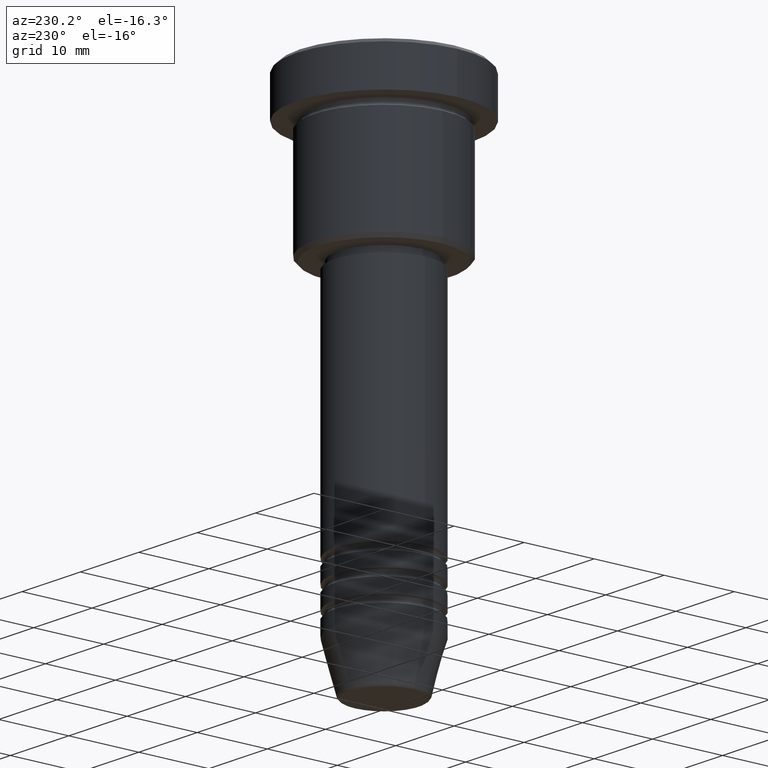
[diagram: clean part render]
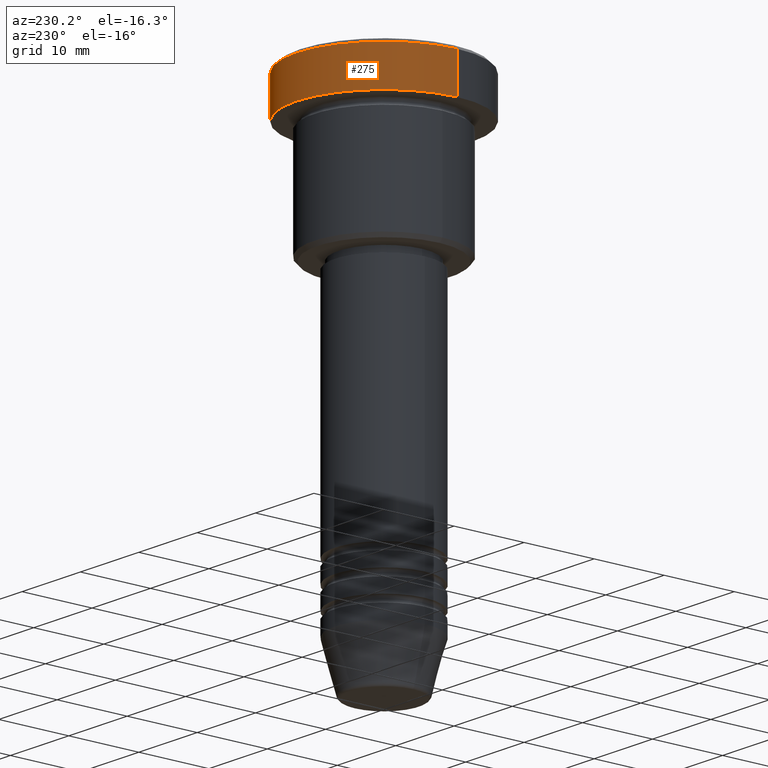
[diagram: same view with one face highlighted and labeled with its STEP entity id]
A machine part, auxiliary view. The second image highlights one B-rep face of the part: STEP entity #275.
In plain terms, the highlighted cylindrical surface (partial cylindrical patch) has radius 12.5 mm, axis along (-0, -0, 1).
Its self-contained STEP definition (entity closure, byte-faithful):
#25 = DIRECTION ( 'NONE',  ( 1.000000000000000000, 0.000000000000000000, 0.000000000000000000 ) ) ;
#31 = VERTEX_POINT ( 'NONE', #1016 ) ;
#52 = EDGE_LOOP ( 'NONE', ( #1035, #123, #453, #198 ) ) ;
#81 = VERTEX_POINT ( 'NONE', #484 ) ;
#111 = CIRCLE ( 'NONE', #651, 12.50000000000000000 ) ;
#123 = ORIENTED_EDGE ( 'NONE', *, *, #471, .T. ) ;
#126 = CARTESIAN_POINT ( 'NONE',  ( -12.50000000000000000, 1.530808498934191521E-15, -5.999999999999996447 ) ) ;
#152 = EDGE_CURVE ( 'NONE', #81, #31, #1156, .T. ) ;
#162 = EDGE_CURVE ( 'NONE', #1113, #583, #111, .T. ) ;
#196 = EDGE_CURVE ( 'NONE', #1113, #31, #962, .T. ) ;
#198 = ORIENTED_EDGE ( 'NONE', *, *, #196, .F. ) ;
#275 = ADVANCED_FACE ( 'NONE', ( #1040 ), #415, .T. ) ;
#384 = LINE ( 'NONE', #664, #514 ) ;
#386 = AXIS2_PLACEMENT_3D ( 'NONE', #698, #778, #1057 ) ;
#415 = CYLINDRICAL_SURFACE ( 'NONE', #386, 12.50000000000000000 ) ;
#426 = CARTESIAN_POINT ( 'NONE',  ( 12.50000000000000000, 0.000000000000000000, -5.999999999999996447 ) ) ;
#453 = ORIENTED_EDGE ( 'NONE', *, *, #152, .T. ) ;
#471 = EDGE_CURVE ( 'NONE', #583, #81, #384, .T. ) ;
#477 = DIRECTION ( 'NONE',  ( 1.000000000000000000, 0.000000000000000000, 0.000000000000000000 ) ) ;
#484 = CARTESIAN_POINT ( 'NONE',  ( -12.50000000000000000, 1.530808498934191521E-15, -0.5000000000000056621 ) ) ;
#510 = CARTESIAN_POINT ( 'NONE',  ( 12.50000000000000000, 0.000000000000000000, 0.000000000000000000 ) ) ;
#514 = VECTOR ( 'NONE', #1111, 1000.000000000000000 ) ;
#581 = CARTESIAN_POINT ( 'NONE',  ( 0.000000000000000000, 0.000000000000000000, -5.999999999999996447 ) ) ;
#583 = VERTEX_POINT ( 'NONE', #126 ) ;
#607 = AXIS2_PLACEMENT_3D ( 'NONE', #944, #851, #477 ) ;
#651 = AXIS2_PLACEMENT_3D ( 'NONE', #581, #939, #25 ) ;
#664 = CARTESIAN_POINT ( 'NONE',  ( -12.50000000000000000, 1.530808498934191521E-15, 0.000000000000000000 ) ) ;
#698 = CARTESIAN_POINT ( 'NONE',  ( 0.000000000000000000, 0.000000000000000000, 0.000000000000000000 ) ) ;
#778 = DIRECTION ( 'NONE',  ( -0.000000000000000000, -0.000000000000000000, 1.000000000000000000 ) ) ;
#851 = DIRECTION ( 'NONE',  ( 0.000000000000000000, 0.000000000000000000, -1.000000000000000000 ) ) ;
#939 = DIRECTION ( 'NONE',  ( -0.000000000000000000, -0.000000000000000000, 1.000000000000000000 ) ) ;
#944 = CARTESIAN_POINT ( 'NONE',  ( 0.000000000000000000, 0.000000000000000000, -0.5000000000000056621 ) ) ;
#962 = LINE ( 'NONE', #510, #986 ) ;
#966 = DIRECTION ( 'NONE',  ( -0.000000000000000000, -0.000000000000000000, 1.000000000000000000 ) ) ;
#986 = VECTOR ( 'NONE', #966, 1000.000000000000000 ) ;
#1016 = CARTESIAN_POINT ( 'NONE',  ( 12.50000000000000000, 0.000000000000000000, -0.5000000000000056621 ) ) ;
#1035 = ORIENTED_EDGE ( 'NONE', *, *, #162, .T. ) ;
#1040 = FACE_OUTER_BOUND ( 'NONE', #52, .T. ) ;
#1057 = DIRECTION ( 'NONE',  ( 1.000000000000000000, 0.000000000000000000, 0.000000000000000000 ) ) ;
#1111 = DIRECTION ( 'NONE',  ( -0.000000000000000000, -0.000000000000000000, 1.000000000000000000 ) ) ;
#1113 = VERTEX_POINT ( 'NONE', #426 ) ;
#1156 = CIRCLE ( 'NONE', #607, 12.50000000000000000 ) ;